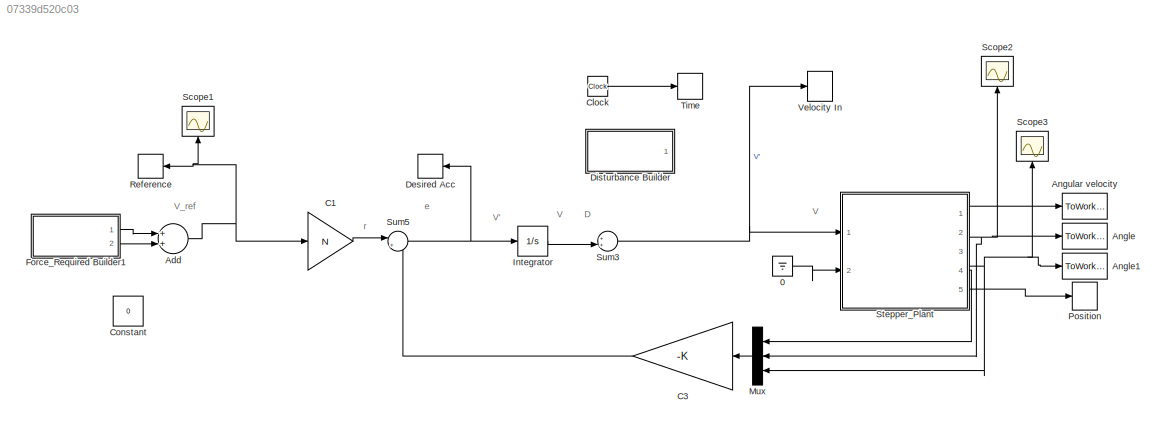
MODEL slx_07339d520c03
KIND model
CONFIG AbsTol = auto
CONFIG EnableMultiTasking = off
CONFIG FixedStep = auto
CONFIG MaxStep = auto
CONFIG MinStep = auto
CONFIG RelTol = 1e-3
CONFIG SampleTimeConstraint = Unconstrained
CONFIG Solver = VariableStepAuto
CONFIG SolverName = VariableStepAuto
CONFIG StartTime = 0.0
CONFIG StopTime = tsim
WORKSPACE source: MAT-file member
WORKSPACE MCOS: class17 (value not decoded)
BLOCK [Ground] 0
BLOCK [Sum] Add
  InputSameDT = off
  OutDataTypeStr = Inherit: Inherit via internal rule
  Ports = [2, 1]
  SaturateOnIntegerOverflow = off
BLOCK [ToWorkspace] Angle
  MaxDataPoints = inf
  Ports = [1]
  SampleTime = -1
  VariableName = theta
BLOCK [ToWorkspace] Angle1
  MaxDataPoints = inf
  Ports = [1]
  SampleTime = -1
  VariableName = V
BLOCK [ToWorkspace] Angular velocity
  MaxDataPoints = inf
  Ports = [1]
  SampleTime = -1
  VariableName = omega
BLOCK [Gain] C1
  Gain = N
  OutDataTypeStr = Inherit: Inherit via internal rule
  ParamDataTypeStr = Inherit: Inherit via internal rule
  SaturateOnIntegerOverflow = off
BLOCK [Gain] C3
  Gain = -K
  Multiplication = Matrix(K*u) (u vector)
  OutDataTypeStr = Inherit: Inherit via internal rule
  ParamDataTypeStr = Inherit: Inherit via internal rule
  SaturateOnIntegerOverflow = off
BLOCK [Clock] Clock
BLOCK [Constant] Constant
  Value = 0
BLOCK [ToWorkspace] Desired Acc
  MaxDataPoints = inf
  Ports = [1]
  SampleTime = -1
  VariableName = ri
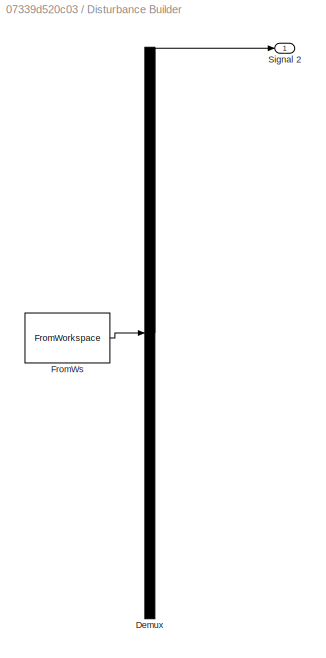
BLOCK [SubSystem] Disturbance Builder
  ClipboardFcn = sigbuilder_block('clipboard');
  CloseFcn = sigbuilder_block('close');
  Commented = on
  ContinueFcn = sigbuilder_block('continue');
  CopyFcn = sigbuilder_block('copy');
  DeleteFcn = sigbuilder_block('delete');
  LoadFcn = sigbuilder_block('load');
  MaskHideContents = on
  ModelCloseFcn = sigbuilder_block('modelClose');
  NameChangeFcn = sigbuilder_block('namechange');
  OpenFcn = sigbuilder_block('open',[203 87.5 550.5 362.5 ]);
  PauseFcn = sigbuilder_block('pause');
  Ports = [0, 1]
  PreSaveFcn = sigbuilder_block('preSave');
  RequestExecContextInheritance = off
  StartFcn = sigbuilder_block('start');
  StopFcn = sigbuilder_block('stop');
  Tag = STV Subsys
  Variant = off
BLOCK [Demux] Disturbance Builder/Demux
  Outputs = 1
  Ports = [1, 1]
  Tag = STV Demux
BLOCK [FromWorkspace] Disturbance Builder/FromWs
  SampleTime = 0
  Tag = STV FromWs
  VariableName = tuvar
  ZeroCross = on
BLOCK [Outport] Disturbance Builder/Signal 2
  IconDisplay = Port number
  Tag = STV Outport
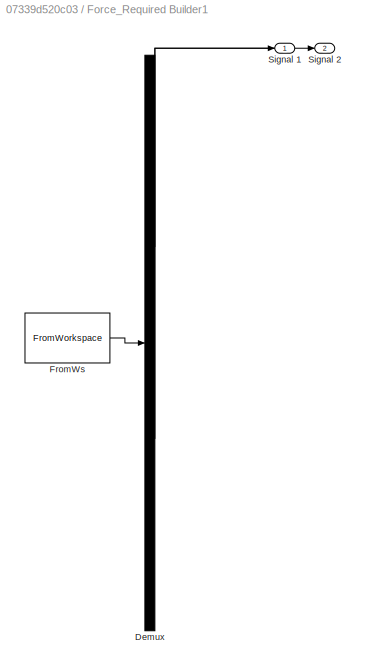
BLOCK [SubSystem] Force_Required Builder1
  ClipboardFcn = sigbuilder_block('clipboard');
  CloseFcn = sigbuilder_block('close');
  ContinueFcn = sigbuilder_block('continue');
  CopyFcn = sigbuilder_block('copy');
  DeleteFcn = sigbuilder_block('delete');
  LoadFcn = sigbuilder_block('load');
  MaskHideContents = on
  ModelCloseFcn = sigbuilder_block('modelClose');
  NameChangeFcn = sigbuilder_block('namechange');
  OpenFcn = sigbuilder_block('open',[520.5 84.75 550.5 362.25 ]);
  PauseFcn = sigbuilder_block('pause');
  Ports = [0, 2]
  PreSaveFcn = sigbuilder_block('preSave');
  RequestExecContextInheritance = off
  StartFcn = sigbuilder_block('start');
  StopFcn = sigbuilder_block('stop');
  Tag = STV Subsys
  Variant = off
BLOCK [Demux] Force_Required Builder1/Demux
  Outputs = 2
  Ports = [1, 2]
  Tag = STV Demux
BLOCK [FromWorkspace] Force_Required Builder1/FromWs
  SampleTime = 0
  Tag = STV FromWs
  VariableName = tuvar
  ZeroCross = on
BLOCK [Outport] Force_Required Builder1/Signal 1
  IconDisplay = Port number
  Tag = STV Outport
BLOCK [Outport] Force_Required Builder1/Signal 2
  IconDisplay = Port number
  Port = 2
  Tag = STV Outport
BLOCK [Integrator] Integrator
  InitialCondition = 0.01
  Ports = [1, 1]
BLOCK [Mux] Mux
  DisplayOption = bar
  Inputs = 3
  Ports = [3, 1]
BLOCK [ToWorkspace] Position
  MaxDataPoints = inf
  Ports = [1]
  SampleTime = -1
  VariableName = x
BLOCK [ToWorkspace] Reference
  MaxDataPoints = inf
  Ports = [1]
  SampleTime = -1
  VariableName = r
BLOCK [Scope] Scope1
  NumInputPorts = 1
  Ports = [1]
  ScopeSpecificationString = Simulink.scopes.TimeScopeBlockCfg('CurrentConfiguration', extmgr.ConfigurationSet(extmgr.Configuration('Core','General UI',true),extmgr.Configuration('Core','Source UI',true),extmgr.Configuration('Sources','WiredSimulink',true,'DataLoggingVariableName','ScopeData1'),extmgr.Configuration('Visuals','Time Domain',true,'SerializedDisplays',{struct('MinYLimReal','-1.00000','MaxYLimReal','1.00000','YLab...<+1460ch>
BLOCK [Scope] Scope2
  NumInputPorts = 1
  Ports = [1]
  ScopeSpecificationString = Simulink.scopes.TimeScopeBlockCfg('CurrentConfiguration', extmgr.ConfigurationSet(extmgr.Configuration('Core','General UI',true),extmgr.Configuration('Core','Source UI',true),extmgr.Configuration('Sources','WiredSimulink',true,'DataLoggingVariableName','ScopeData1'),extmgr.Configuration('Visuals','Time Domain',true,'SerializedDisplays',{struct('MinYLimReal','-0.5811','MaxYLimReal','6.10243','YLabe...<+1495ch>
BLOCK [Scope] Scope3
  NumInputPorts = 1
  Ports = [1]
  ScopeSpecificationString = Simulink.scopes.TimeScopeBlockCfg('CurrentConfiguration', extmgr.ConfigurationSet(extmgr.Configuration('Core','General UI',true),extmgr.Configuration('Core','Source UI',true),extmgr.Configuration('Sources','WiredSimulink',true,'DataLoggingVariableName','ScopeData2'),extmgr.Configuration('Visuals','Time Domain',true,'SerializedDisplays',{struct('MinYLimReal','-0.00011','MaxYLimReal','0.00099','YLab...<+1497ch>
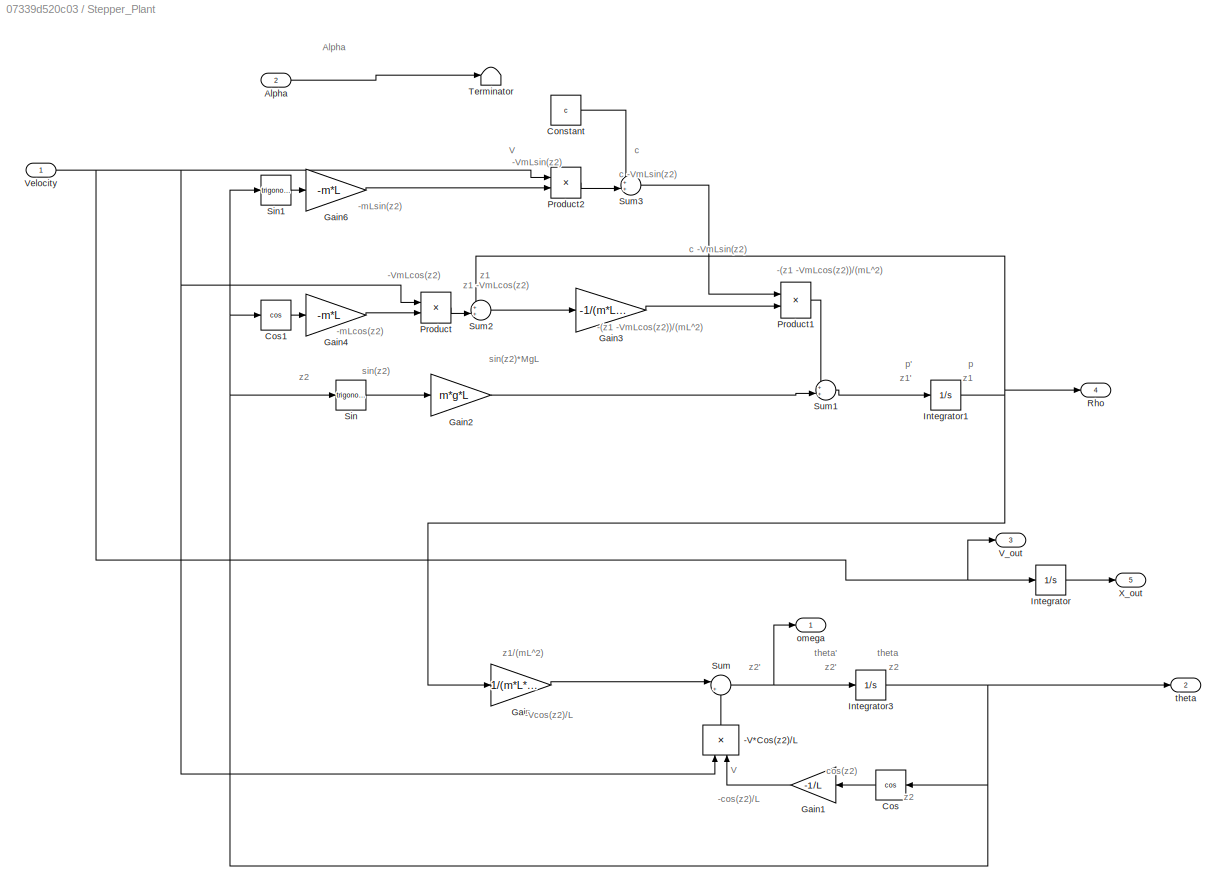
BLOCK [SubSystem] Stepper_Plant
  Ports = [2, 5]
  RequestExecContextInheritance = off
  Variant = off
BLOCK [Product] Stepper_Plant/-V*Cos(z2)//L
  InputSameDT = off
  OutDataTypeStr = Inherit: Inherit via internal rule
  Ports = [2, 1]
  RndMeth = Floor
  SaturateOnIntegerOverflow = off
BLOCK [Inport] Stepper_Plant/Alpha
  IconDisplay = Port number
  Port = 2
BLOCK [Constant] Stepper_Plant/Constant
  Value = c
BLOCK [Trigonometry] Stepper_Plant/Cos
  Operator = cos
  Ports = [1, 1]
BLOCK [Trigonometry] Stepper_Plant/Cos1
  Operator = cos
  Ports = [1, 1]
BLOCK [Gain] Stepper_Plant/Gain
  Gain = 1/(m*L*L)
  OutDataTypeStr = Inherit: Inherit via internal rule
  ParamDataTypeStr = Inherit: Inherit via internal rule
  SaturateOnIntegerOverflow = off
BLOCK [Gain] Stepper_Plant/Gain1
  Gain = -1/L
  OutDataTypeStr = Inherit: Inherit via internal rule
  ParamDataTypeStr = Inherit: Inherit via internal rule
  SaturateOnIntegerOverflow = off
BLOCK [Gain] Stepper_Plant/Gain2
  Gain = m*g*L
  OutDataTypeStr = Inherit: Inherit via internal rule
  ParamDataTypeStr = Inherit: Inherit via internal rule
  SaturateOnIntegerOverflow = off
BLOCK [Gain] Stepper_Plant/Gain3
  Gain = -1/(m*L*L)
  OutDataTypeStr = Inherit: Inherit via internal rule
  ParamDataTypeStr = Inherit: Inherit via internal rule
  SaturateOnIntegerOverflow = off
BLOCK [Gain] Stepper_Plant/Gain4
  Gain = -m*L
  OutDataTypeStr = Inherit: Inherit via internal rule
  ParamDataTypeStr = Inherit: Inherit via internal rule
  SaturateOnIntegerOverflow = off
BLOCK [Gain] Stepper_Plant/Gain6
  Gain = -m*L
  OutDataTypeStr = Inherit: Inherit via internal rule
  ParamDataTypeStr = Inherit: Inherit via internal rule
  SaturateOnIntegerOverflow = off
BLOCK [Integrator] Stepper_Plant/Integrator
  Ports = [1, 1]
BLOCK [Integrator] Stepper_Plant/Integrator1
  Ports = [1, 1]
BLOCK [Integrator] Stepper_Plant/Integrator3
  InitialCondition = theta0
  Ports = [1, 1]
BLOCK [Product] Stepper_Plant/Product
  InputSameDT = off
  OutDataTypeStr = Inherit: Inherit via internal rule
  Ports = [2, 1]
  RndMeth = Floor
  SaturateOnIntegerOverflow = off
BLOCK [Product] Stepper_Plant/Product1
  InputSameDT = off
  OutDataTypeStr = Inherit: Inherit via internal rule
  Ports = [2, 1]
  RndMeth = Floor
  SaturateOnIntegerOverflow = off
BLOCK [Product] Stepper_Plant/Product2
  InputSameDT = off
  OutDataTypeStr = Inherit: Inherit via internal rule
  Ports = [2, 1]
  RndMeth = Floor
  SaturateOnIntegerOverflow = off
BLOCK [Outport] Stepper_Plant/Rho
  IconDisplay = Port number
  Port = 4
BLOCK [Trigonometry] Stepper_Plant/Sin
  Ports = [1, 1]
BLOCK [Trigonometry] Stepper_Plant/Sin1
  Ports = [1, 1]
BLOCK [Sum] Stepper_Plant/Sum
  IconShape = round
  InputSameDT = off
  Inputs = |++
  OutDataTypeStr = Inherit: Inherit via internal rule
  Ports = [2, 1]
  SaturateOnIntegerOverflow = off
BLOCK [Sum] Stepper_Plant/Sum1
  IconShape = round
  InputSameDT = off
  Inputs = ++|
  OutDataTypeStr = Inherit: Inherit via internal rule
  Ports = [2, 1]
  SaturateOnIntegerOverflow = off
BLOCK [Sum] Stepper_Plant/Sum2
  IconShape = round
  InputSameDT = off
  Inputs = ++|
  OutDataTypeStr = Inherit: Inherit via internal rule
  Ports = [2, 1]
  SaturateOnIntegerOverflow = off
BLOCK [Sum] Stepper_Plant/Sum3
  IconShape = round
  InputSameDT = off
  Inputs = ++|
  OutDataTypeStr = Inherit: Inherit via internal rule
  Ports = [2, 1]
  SaturateOnIntegerOverflow = off
BLOCK [Terminator] Stepper_Plant/Terminator
BLOCK [Outport] Stepper_Plant/V_out
  IconDisplay = Port number
  Port = 3
BLOCK [Inport] Stepper_Plant/Velocity
  IconDisplay = Port number
BLOCK [Outport] Stepper_Plant/X_out
  IconDisplay = Port number
  Port = 5
BLOCK [Outport] Stepper_Plant/omega
  IconDisplay = Port number
BLOCK [Outport] Stepper_Plant/theta
  IconDisplay = Port number
  Port = 2
BLOCK [Sum] Sum3
  IconShape = round
  InputSameDT = off
  Inputs = ++|
  OutDataTypeStr = Inherit: Inherit via internal rule
  Ports = [2, 1]
  SaturateOnIntegerOverflow = off
BLOCK [Sum] Sum5
  IconShape = round
  InputSameDT = off
  Inputs = |++
  OutDataTypeStr = Inherit: Inherit via internal rule
  Ports = [2, 1]
  SaturateOnIntegerOverflow = off
BLOCK [ToWorkspace] Time
  MaxDataPoints = inf
  Ports = [1]
  SampleTime = -1
  VariableName = t
BLOCK [ToWorkspace] Velocity In
  MaxDataPoints = inf
  Ports = [1]
  SampleTime = -1
  VariableName = u
ANNOTATION (root): D
ANNOTATION (root): V
ANNOTATION (root): V'
ANNOTATION (root): V_ref
ANNOTATION (root): e
ANNOTATION (root): r
ANNOTATION Stepper_Plant: -(z1 -VmLcos(z2))/(mL^2)
ANNOTATION Stepper_Plant: -Vcos(z2)/L
ANNOTATION Stepper_Plant: -VmLcos(z2)
ANNOTATION Stepper_Plant: -VmLsin(z2)
ANNOTATION Stepper_Plant: -cos(z2)/L
ANNOTATION Stepper_Plant: -mLcos(z2)
ANNOTATION Stepper_Plant: -mLsin(z2)
ANNOTATION Stepper_Plant: Alpha
ANNOTATION Stepper_Plant: V
ANNOTATION Stepper_Plant: c
ANNOTATION Stepper_Plant: c -VmLsin(z2)
ANNOTATION Stepper_Plant: cos(z2)
ANNOTATION Stepper_Plant: p
ANNOTATION Stepper_Plant: p'
ANNOTATION Stepper_Plant: sin(z2)
ANNOTATION Stepper_Plant: sin(z2)*MgL
ANNOTATION Stepper_Plant: theta
ANNOTATION Stepper_Plant: theta'
ANNOTATION Stepper_Plant: z1
ANNOTATION Stepper_Plant: z1 -VmLcos(z2)
ANNOTATION Stepper_Plant: z1'
ANNOTATION Stepper_Plant: z1/(mL^2)
ANNOTATION Stepper_Plant: z2
ANNOTATION Stepper_Plant: z2'
LINE 0:1 -> Stepper_Plant:2
NET Add:1 -> C1:1, Reference:1, Scope1:1
LINE C1:1 -> Sum5:1
LINE C3:1 -> Sum5:2
LINE Clock:1 -> Time:1
LINE Force_Required Builder1:1 -> Add:1
LINE Force_Required Builder1:2 -> Add:2
LINE Integrator:1 -> Sum3:2
LINE Mux:1 -> C3:1
LINE Stepper_Plant/-V*Cos(z2)//L:1 -> Stepper_Plant/Sum:2
LINE Stepper_Plant/Alpha:1 -> Stepper_Plant/Terminator:1
LINE Stepper_Plant/Constant:1 -> Stepper_Plant/Sum3:1
LINE Stepper_Plant/Cos1:1 -> Stepper_Plant/Gain4:1
LINE Stepper_Plant/Cos:1 -> Stepper_Plant/Gain1:1
LINE Stepper_Plant/Gain1:1 -> Stepper_Plant/-V*Cos(z2)//L:2
LINE Stepper_Plant/Gain2:1 -> Stepper_Plant/Sum1:2
LINE Stepper_Plant/Gain3:1 -> Stepper_Plant/Product1:2
LINE Stepper_Plant/Gain4:1 -> Stepper_Plant/Product:2
LINE Stepper_Plant/Gain6:1 -> Stepper_Plant/Product2:2
LINE Stepper_Plant/Gain:1 -> Stepper_Plant/Sum:1
NET Stepper_Plant/Integrator1:1 -> Stepper_Plant/Gain:1, Stepper_Plant/Rho:1, Stepper_Plant/Sum2:1
NET Stepper_Plant/Integrator3:1 -> Stepper_Plant/Cos1:1, Stepper_Plant/Cos:1, Stepper_Plant/Sin1:1, Stepper_Plant/Sin:1, Stepper_Plant/theta:1
LINE Stepper_Plant/Integrator:1 -> Stepper_Plant/X_out:1
LINE Stepper_Plant/Product1:1 -> Stepper_Plant/Sum1:1
LINE Stepper_Plant/Product2:1 -> Stepper_Plant/Sum3:2
LINE Stepper_Plant/Product:1 -> Stepper_Plant/Sum2:2
LINE Stepper_Plant/Sin1:1 -> Stepper_Plant/Gain6:1
LINE Stepper_Plant/Sin:1 -> Stepper_Plant/Gain2:1
LINE Stepper_Plant/Sum1:1 -> Stepper_Plant/Integrator1:1
LINE Stepper_Plant/Sum2:1 -> Stepper_Plant/Gain3:1
LINE Stepper_Plant/Sum3:1 -> Stepper_Plant/Product1:1
NET Stepper_Plant/Sum:1 -> Stepper_Plant/Integrator3:1, Stepper_Plant/omega:1
NET Stepper_Plant/Velocity:1 -> Stepper_Plant/-V*Cos(z2)//L:1, Stepper_Plant/Integrator:1, Stepper_Plant/Product2:1, Stepper_Plant/Product:1, Stepper_Plant/V_out:1
LINE Stepper_Plant:1 -> Angular velocity:1
NET Stepper_Plant:2 -> Angle:1, Mux:2, Scope2:1
NET Stepper_Plant:3 -> Angle1:1, Mux:3, Scope3:1
LINE Stepper_Plant:4 -> Mux:1
LINE Stepper_Plant:5 -> Position:1
NET Sum3:1 -> Stepper_Plant:1, Velocity In:1
NET Sum5:1 -> Desired Acc:1, Integrator:1
note: NET lines group one-source signal fan-out (src -> all destinations, sorted); 1:1 wires keep LINE
